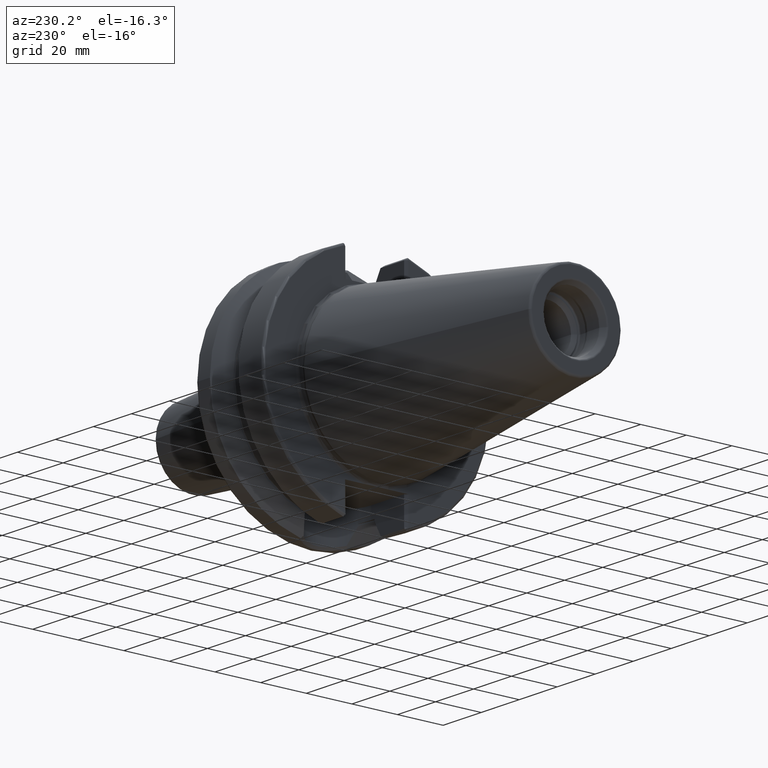
[diagram: clean part render]
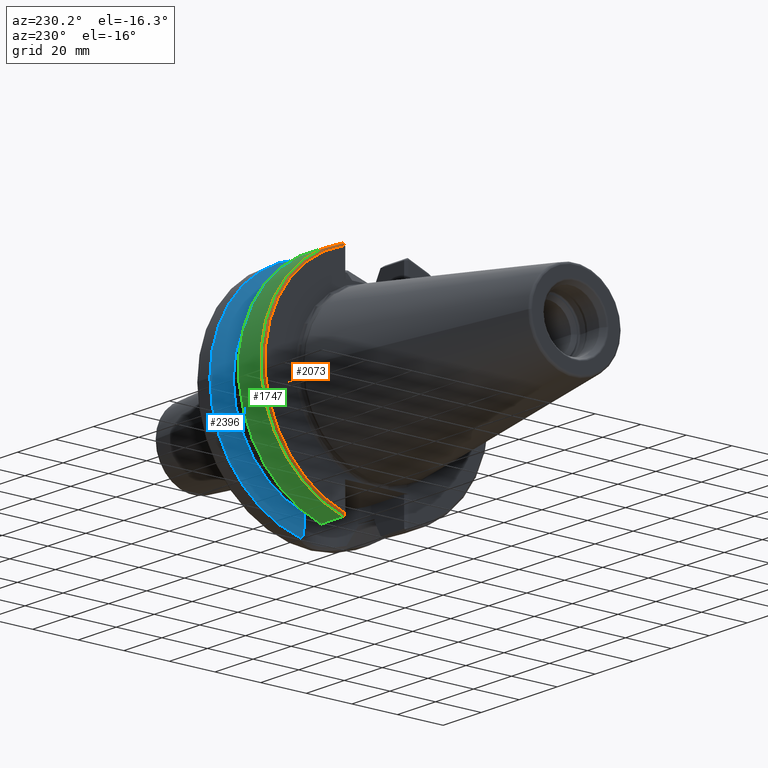
[diagram: same view with three faces highlighted in distinct colors, each labeled with its STEP entity id]
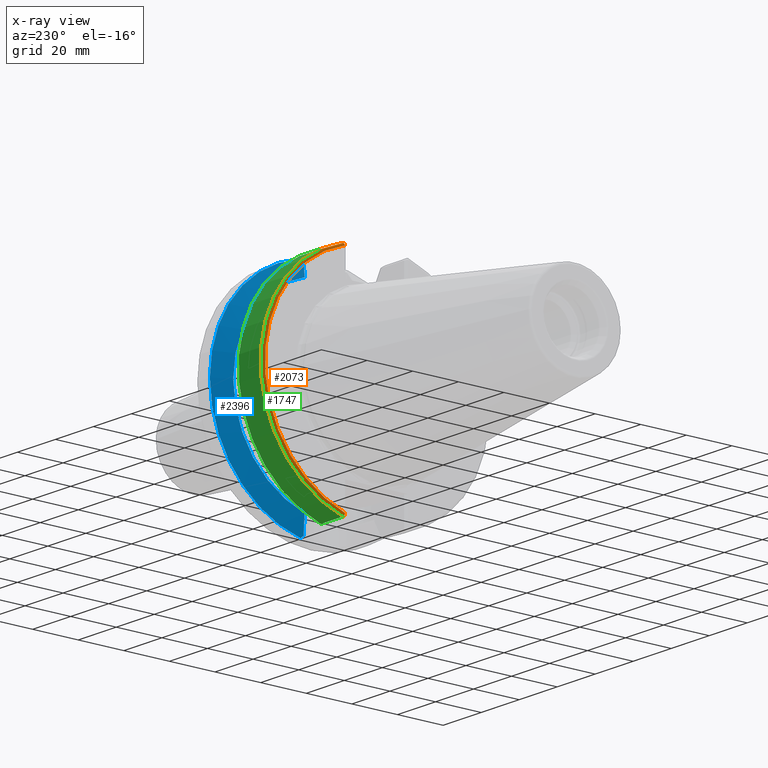
[diagram: x-ray of the same camera — body ghosted, the three highlighted faces saturated]
A machine part, auxiliary view with three faces highlighted in distinct colors.
The next image is the same camera in x-ray (body ghosted, the three faces saturated) — at least one of them is partly hidden behind the body in this view.
Their STEP definitions:

[orange] entity #2073 — the highlighted toroidal blend (fillet) surface has major radius 48.9875 mm and minor (blend) radius 1 mm.
#227=CARTESIAN_POINT('',(4.E0,0.E0,0.E0));
#228=DIRECTION('',(-1.E0,0.E0,0.E0));
#229=DIRECTION('',(0.E0,2.837968869610E-1,9.588844179312E-1));
#230=AXIS2_PLACEMENT_3D('',#227,#228,#229);
#571=CARTESIAN_POINT('',(3.999999999701E0,1.386327248661E1,-4.802665840350E1));
#572=CARTESIAN_POINT('',(3.940459880706E0,1.386328759388E1,-4.802665404266E1));
#573=CARTESIAN_POINT('',(3.818524379244E0,1.386408249541E1,-4.801536526032E1));
#574=CARTESIAN_POINT('',(3.632802361895E0,1.386813157488E1,-4.795971866684E1));
#575=CARTESIAN_POINT('',(3.454761225176E0,1.387449273833E1,-4.786347597167E1));
#576=CARTESIAN_POINT('',(3.294931333912E0,1.388240594639E1,-4.772857875800E1));
#577=CARTESIAN_POINT('',(3.162899754239E0,1.389052093324E1,-4.756045881447E1));
#578=CARTESIAN_POINT('',(3.066796699794E0,1.389728433203E1,-4.736907635249E1));
#579=CARTESIAN_POINT('',(3.011034865800E0,1.390161469890E1,-4.716733990672E1));
#580=CARTESIAN_POINT('',(2.999993172884E0,1.390258355640E1,-4.703686424349E1));
#581=CARTESIAN_POINT('',(2.999993172884E0,1.390249317248E1,-4.697335004621E1));
#583=CARTESIAN_POINT('',(4.E0,1.390251954399E1,4.697334463905E1));
#584=DIRECTION('',(0.E0,9.588842998530E-1,-2.837972859196E-1));
#585=DIRECTION('',(-1.E0,-1.200817223435E-12,-4.057199021190E-12));
#586=AXIS2_PLACEMENT_3D('',#583,#584,#585);
#588=CARTESIAN_POINT('',(3.E0,0.E0,0.E0));
#589=DIRECTION('',(-1.E0,0.E0,0.E0));
#590=DIRECTION('',(0.E0,2.837969049058E-1,9.588844126201E-1));
#591=AXIS2_PLACEMENT_3D('',#588,#589,#590);
#1356=CARTESIAN_POINT('',(3.E0,1.390251954398E1,4.697334463905E1));
#1357=CARTESIAN_POINT('',(4.E0,1.418631682991E1,4.793222893890E1));
#1358=VERTEX_POINT('',#1356);
#1359=VERTEX_POINT('',#1357);
#1370=CARTESIAN_POINT('',(2.999993172884E0,1.390249317248E1,-4.697335004621E1));
#1372=VERTEX_POINT('',#1370);
#1374=VERTEX_POINT('',#571);
#2060=CARTESIAN_POINT('',(4.E0,0.E0,0.E0));
#2061=DIRECTION('',(1.E0,0.E0,0.E0));
#2062=DIRECTION('',(0.E0,-1.E0,0.E0));
#2063=AXIS2_PLACEMENT_3D('',#2060,#2061,#2062);
#2064=TOROIDAL_SURFACE('',#2063,4.89875E1,1.E0);
#2066=ORIENTED_EDGE('',*,*,#2065,.F.);
#2067=ORIENTED_EDGE('',*,*,#1738,.F.);
#2069=ORIENTED_EDGE('',*,*,#2068,.F.);
#2070=ORIENTED_EDGE('',*,*,#1575,.T.);
#2071=EDGE_LOOP('',(#2066,#2067,#2069,#2070));
#2072=FACE_OUTER_BOUND('',#2071,.F.);
#2073=ADVANCED_FACE('',(#2072),#2064,.T.);
#231=CIRCLE('',#230,4.99875E1);
#582=B_SPLINE_CURVE_WITH_KNOTS('',3,(#571,#572,#573,#574,#575,#576,#577,#578,
#579,#580,#581),.UNSPECIFIED.,.F.,.F.,(4,1,1,1,1,1,1,1,4),(0.E0,1.25E-1,2.5E-1,
3.75E-1,5.E-1,6.25E-1,7.5E-1,8.75E-1,1.E0),.UNSPECIFIED.);
#587=CIRCLE('',#586,1.E0);
#592=CIRCLE('',#591,4.89875E1);
#1575=EDGE_CURVE('',#1358,#1372,#592,.T.);
#1738=EDGE_CURVE('',#1359,#1374,#231,.T.);
#2065=EDGE_CURVE('',#1374,#1372,#582,.T.);
#2068=EDGE_CURVE('',#1358,#1359,#587,.T.);

[blue] entity #2396 — the highlighted conical surface has half-angle 60 deg.
#263=CARTESIAN_POINT('',(3.073066823617E1,0.E0,0.E0));
#264=DIRECTION('',(1.E0,0.E0,0.E0));
#265=DIRECTION('',(0.E0,2.049238320147E-1,-9.787779232657E-1));
#266=AXIS2_PLACEMENT_3D('',#263,#264,#265);
#415=CARTESIAN_POINT('',(2.67375E1,1.172273032403E1,-4.144514217760E1));
#416=CARTESIAN_POINT('',(2.717755273188E1,1.152039825981E1,-4.229446795287E1));
#417=CARTESIAN_POINT('',(2.801804260532E1,1.107404406164E1,-4.392046244152E1));
#418=CARTESIAN_POINT('',(2.916093120674E1,1.029757215552E1,-4.613906421021E1));
#419=CARTESIAN_POINT('',(2.984177307163E1,9.721843848552E0,-4.746425084782E1));
#420=CARTESIAN_POINT('',(3.016210355788E1,9.422169090361E0,-4.808834590435E1));
#485=CARTESIAN_POINT('',(3.006745596523E1,9.509830398822E0,4.790396451831E1));
#486=CARTESIAN_POINT('',(2.975376574683E1,9.797465906135E0,4.729293338983E1));
#487=CARTESIAN_POINT('',(2.908879078217E1,1.035010846105E1,4.599889189585E1));
#488=CARTESIAN_POINT('',(2.797778721927E1,1.109635283633E1,4.384252820130E1));
#489=CARTESIAN_POINT('',(2.716331106798E1,1.152694644153E1,4.226698076473E1));
#490=CARTESIAN_POINT('',(2.67375E1,1.172273032403E1,4.144514217760E1));
#758=CARTESIAN_POINT('',(2.67375E1,0.E0,0.E0));
#759=DIRECTION('',(-1.E0,0.E0,0.E0));
#760=DIRECTION('',(0.E0,2.721714149834E-1,9.622487832499E-1));
#761=AXIS2_PLACEMENT_3D('',#758,#759,#760);
#775=CARTESIAN_POINT('',(3.016210355788E1,9.422169090361E0,-4.808834590435E1));
#776=CARTESIAN_POINT('',(3.022394586618E1,9.512142137117E0,-4.817986780383E1));
#777=CARTESIAN_POINT('',(3.034851502566E1,9.692953240337E0,-4.836399151813E1));
#778=CARTESIAN_POINT('',(3.053803725886E1,9.966778365933E0,-4.864343348084E1));
#779=CARTESIAN_POINT('',(3.066616050581E1,1.015105667945E1,-4.883189001679E1));
#780=CARTESIAN_POINT('',(3.073066823617E1,1.024363005283E1,-4.892666143925E1));
#782=CARTESIAN_POINT('',(3.073066823617E1,0.E0,0.E0));
#783=DIRECTION('',(1.E0,0.E0,0.E0));
#784=DIRECTION('',(0.E0,1.E0,0.E0));
#785=AXIS2_PLACEMENT_3D('',#782,#783,#784);
#948=CARTESIAN_POINT('',(3.073066823617E1,1.046765017837E1,4.887922315251E1));
#949=CARTESIAN_POINT('',(3.065516473864E1,1.035946447073E1,4.876865040800E1));
#950=CARTESIAN_POINT('',(3.050537106240E1,1.014427039488E1,4.854898287946E1));
#951=CARTESIAN_POINT('',(3.028429900742E1,9.824990065200E0,4.822389090934E1));
#952=CARTESIAN_POINT('',(3.013933640756E1,9.614493300520E0,4.801011711517E1));
#953=CARTESIAN_POINT('',(3.006745596523E1,9.509830398822E0,4.790396451831E1));
#1208=CARTESIAN_POINT('',(2.67375E1,1.172273032403E1,4.144514217760E1));
#1209=CARTESIAN_POINT('',(2.67375E1,1.172273032403E1,-4.144514217760E1));
#1210=VERTEX_POINT('',#1208);
#1211=VERTEX_POINT('',#1209);
#1224=CARTESIAN_POINT('',(3.073066823617E1,4.99875E1,0.E0));
#1225=CARTESIAN_POINT('',(3.073066823617E1,1.046765017837E1,4.887922315251E1));
#1226=VERTEX_POINT('',#1224);
#1227=VERTEX_POINT('',#1225);
#1238=CARTESIAN_POINT('',(3.073066823617E1,1.024363005283E1,-4.892666143925E1));
#1239=VERTEX_POINT('',#1238);
#1329=VERTEX_POINT('',#485);
#1337=VERTEX_POINT('',#420);
#2379=CARTESIAN_POINT('',(2.873408411809E1,0.E0,0.E0));
#2380=DIRECTION('',(1.E0,0.E0,0.E0));
#2381=DIRECTION('',(0.E0,-1.E0,0.E0));
#2382=AXIS2_PLACEMENT_3D('',#2379,#2380,#2381);
#2383=CONICAL_SURFACE('',#2382,4.652931486589E1,6.E1);
#2384=ORIENTED_EDGE('',*,*,#1905,.T.);
#2385=ORIENTED_EDGE('',*,*,#1880,.T.);
#2387=ORIENTED_EDGE('',*,*,#2386,.T.);
#2388=ORIENTED_EDGE('',*,*,#1761,.T.);
#2390=ORIENTED_EDGE('',*,*,#2389,.T.);
#2392=ORIENTED_EDGE('',*,*,#2391,.T.);
#2393=ORIENTED_EDGE('',*,*,#1968,.T.);
#2394=EDGE_LOOP('',(#2384,#2385,#2387,#2388,#2390,#2392,#2393));
#2395=FACE_OUTER_BOUND('',#2394,.F.);
#2396=ADVANCED_FACE('',(#2395),#2383,.T.);
#267=CIRCLE('',#266,4.99875E1);
#421=B_SPLINE_CURVE_WITH_KNOTS('',3,(#415,#416,#417,#418,#419,#420),
.UNSPECIFIED.,.F.,.F.,(4,1,1,4),(0.E0,3.333333333333E-1,6.666666666667E-1,1.E0),
.UNSPECIFIED.);
#491=B_SPLINE_CURVE_WITH_KNOTS('',3,(#485,#486,#487,#488,#489,#490),
.UNSPECIFIED.,.F.,.F.,(4,1,1,4),(0.E0,3.333333333333E-1,6.666666666667E-1,1.E0),
.UNSPECIFIED.);
#762=CIRCLE('',#761,4.307112973177E1);
#781=B_SPLINE_CURVE_WITH_KNOTS('',3,(#775,#776,#777,#778,#779,#780),
.UNSPECIFIED.,.F.,.F.,(4,1,1,4),(0.E0,3.333333333333E-1,6.666666666667E-1,1.E0),
.UNSPECIFIED.);
#786=CIRCLE('',#785,4.99875E1);
#954=B_SPLINE_CURVE_WITH_KNOTS('',3,(#948,#949,#950,#951,#952,#953),
.UNSPECIFIED.,.F.,.F.,(4,1,1,4),(0.E0,3.333333333333E-1,6.666666666667E-1,1.E0),
.UNSPECIFIED.);
#1761=EDGE_CURVE('',#1239,#1226,#267,.T.);
#1880=EDGE_CURVE('',#1211,#1337,#421,.T.);
#1905=EDGE_CURVE('',#1210,#1211,#762,.T.);
#1968=EDGE_CURVE('',#1329,#1210,#491,.T.);
#2386=EDGE_CURVE('',#1337,#1239,#781,.T.);
#2389=EDGE_CURVE('',#1226,#1227,#786,.T.);
#2391=EDGE_CURVE('',#1227,#1329,#954,.T.);

[green] entity #1747 — the highlighted cylindrical surface (partial cylindrical patch) has radius 49.9875 mm, axis along (1, 0, 0).
#227=CARTESIAN_POINT('',(4.E0,0.E0,0.E0));
#228=DIRECTION('',(-1.E0,0.E0,0.E0));
#229=DIRECTION('',(0.E0,2.837968869610E-1,9.588844179312E-1));
#230=AXIS2_PLACEMENT_3D('',#227,#228,#229);
#232=DIRECTION('',(-1.E0,-7.302338022926E-8,-9.708531933347E-8));
#233=VECTOR('',#232,1.166933176412E1);
#234=CARTESIAN_POINT('',(1.566933176383E1,1.386327333875E1,-4.802665727057E1));
#235=LINE('',#234,#233);
#236=CARTESIAN_POINT('',(1.566933176383E1,0.E0,0.E0));
#237=DIRECTION('',(1.E0,0.E0,0.E0));
#238=DIRECTION('',(0.E0,2.773348004750E-1,-9.607733387462E-1));
#239=AXIS2_PLACEMENT_3D('',#236,#237,#238);
#241=DIRECTION('',(9.999999999989E-1,8.887251737038E-7,-1.189757232592E-6));
#242=VECTOR('',#241,1.166933177277E1);
#243=CARTESIAN_POINT('',(3.999999991073E0,1.418628651613E1,4.793224872501E1));
#244=LINE('',#243,#242);
#571=CARTESIAN_POINT('',(3.999999999701E0,1.386327248661E1,-4.802665840350E1));
#1342=CARTESIAN_POINT('',(1.566933176383E1,1.386327333875E1,-4.802665727057E1));
#1343=CARTESIAN_POINT('',(1.566933176383E1,1.418629688696E1,4.793223484134E1));
#1344=VERTEX_POINT('',#1342);
#1345=VERTEX_POINT('',#1343);
#1357=CARTESIAN_POINT('',(4.E0,1.418631682991E1,4.793222893890E1));
#1359=VERTEX_POINT('',#1357);
#1374=VERTEX_POINT('',#571);
#1733=CARTESIAN_POINT('',(-1.0879E2,0.E0,0.E0));
#1734=DIRECTION('',(1.E0,0.E0,0.E0));
#1735=DIRECTION('',(0.E0,-1.E0,0.E0));
#1736=AXIS2_PLACEMENT_3D('',#1733,#1734,#1735);
#1737=CYLINDRICAL_SURFACE('',#1736,4.99875E1);
#1739=ORIENTED_EDGE('',*,*,#1738,.T.);
#1741=ORIENTED_EDGE('',*,*,#1740,.F.);
#1742=ORIENTED_EDGE('',*,*,#1686,.T.);
#1744=ORIENTED_EDGE('',*,*,#1743,.F.);
#1745=EDGE_LOOP('',(#1739,#1741,#1742,#1744));
#1746=FACE_OUTER_BOUND('',#1745,.F.);
#1747=ADVANCED_FACE('',(#1746),#1737,.T.);
#231=CIRCLE('',#230,4.99875E1);
#240=CIRCLE('',#239,4.99875E1);
#1686=EDGE_CURVE('',#1344,#1345,#240,.T.);
#1738=EDGE_CURVE('',#1359,#1374,#231,.T.);
#1740=EDGE_CURVE('',#1344,#1374,#235,.T.);
#1743=EDGE_CURVE('',#1359,#1345,#244,.T.);